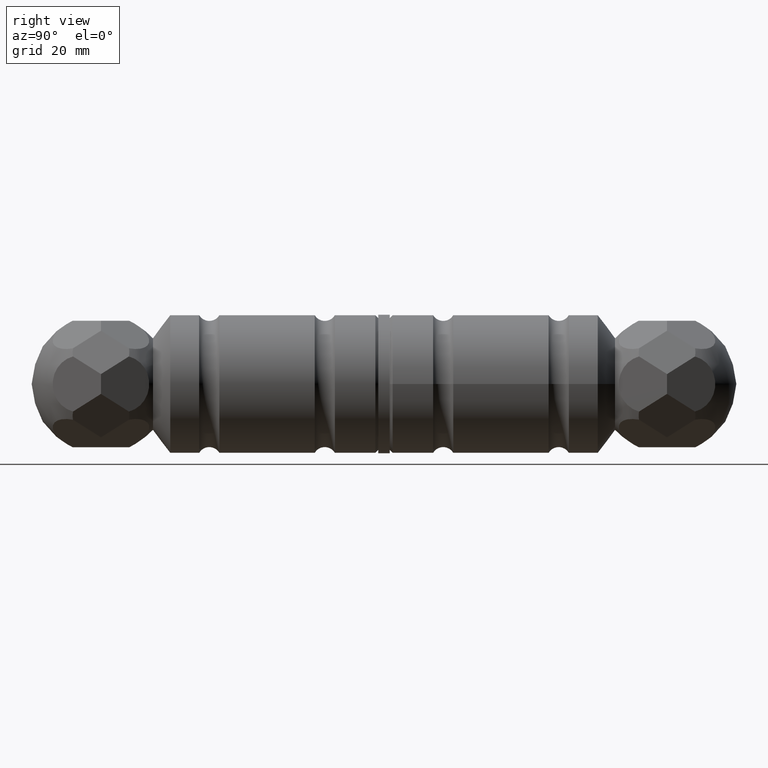
[diagram: clean part render]
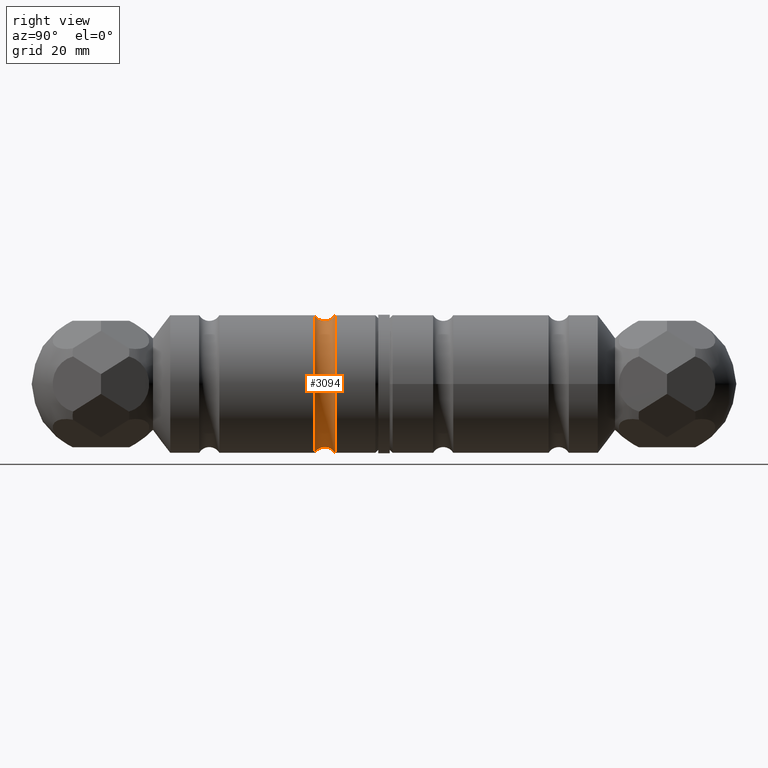
[diagram: same view with one face highlighted and labeled with its STEP entity id]
A machine part, right view. The second image highlights one B-rep face of the part: STEP entity #3094.
In plain terms, the highlighted toroidal blend (fillet) surface has major radius 13.0313 mm and minor (blend) radius 2.0313 mm.
Its self-contained STEP definition (entity closure, byte-faithful):
#44 = CIRCLE ( 'NONE', #4600, 12.00000000000000000 ) ;
#449 = FACE_OUTER_BOUND ( 'NONE', #2887, .T. ) ;
#536 = EDGE_LOOP ( 'NONE', ( #11703 ) ) ;
#537 = CIRCLE ( 'NONE', #11349, 12.00000000000000000 ) ;
#1136 = DIRECTION ( 'NONE',  ( 1.000000000000000000, -3.553059396038163438E-18, 0.000000000000000000 ) ) ;
#1806 = CARTESIAN_POINT ( 'NONE',  ( 3.908365335642082088E-17, 11.00000000000000355, 0.000000000000000000 ) ) ;
#1948 = DIRECTION ( 'NONE',  ( 1.000000000000000000, 0.000000000000000000, 0.000000000000000000 ) ) ;
#2887 = EDGE_LOOP ( 'NONE', ( #3709 ) ) ;
#3094 = ADVANCED_FACE ( 'NONE', ( #449, #3562 ), #10476, .F. ) ;
#3562 = FACE_OUTER_BOUND ( 'NONE', #536, .T. ) ;
#3576 = CARTESIAN_POINT ( 'NONE',  ( 12.00000000000000000, 11.00000000000000355, 0.000000000000000000 ) ) ;
#3621 = DIRECTION ( 'NONE',  ( -3.553059396038163438E-18, -1.000000000000000000, 0.000000000000000000 ) ) ;
#3709 = ORIENTED_EDGE ( 'NONE', *, *, #6914, .T. ) ;
#4492 = CARTESIAN_POINT ( 'NONE',  ( 12.00000000000000000, 7.500000000000000000, 1.368455531567204171E-45 ) ) ;
#4600 = AXIS2_PLACEMENT_3D ( 'NONE', #7579, #8404, #1948 ) ;
#4873 = DIRECTION ( 'NONE',  ( -3.553059396038163438E-18, -1.000000000000000000, 0.000000000000000000 ) ) ;
#4910 = VERTEX_POINT ( 'NONE', #3576 ) ;
#5797 = VERTEX_POINT ( 'NONE', #4492 ) ;
#6914 = EDGE_CURVE ( 'NONE', #4910, #4910, #537, .T. ) ;
#7579 = CARTESIAN_POINT ( 'NONE',  ( 2.664794547028650312E-17, 7.500000000000000000, 1.368455531567204171E-45 ) ) ;
#8404 = DIRECTION ( 'NONE',  ( -3.553059396038163438E-18, -1.000000000000000000, 0.000000000000000000 ) ) ;
#8417 = AXIS2_PLACEMENT_3D ( 'NONE', #8464, #4873, #1136 ) ;
#8464 = CARTESIAN_POINT ( 'NONE',  ( 0.000000000000000000, 9.250000000000001776, 6.842277657836020854E-46 ) ) ;
#10476 = TOROIDAL_SURFACE ( 'NONE', #8417, 13.03125000000000178, 2.031250000000000444 ) ;
#11099 = DIRECTION ( 'NONE',  ( 1.000000000000000000, 0.000000000000000000, 0.000000000000000000 ) ) ;
#11349 = AXIS2_PLACEMENT_3D ( 'NONE', #1806, #3621, #11099 ) ;
#11703 = ORIENTED_EDGE ( 'NONE', *, *, #11720, .F. ) ;
#11720 = EDGE_CURVE ( 'NONE', #5797, #5797, #44, .T. ) ;